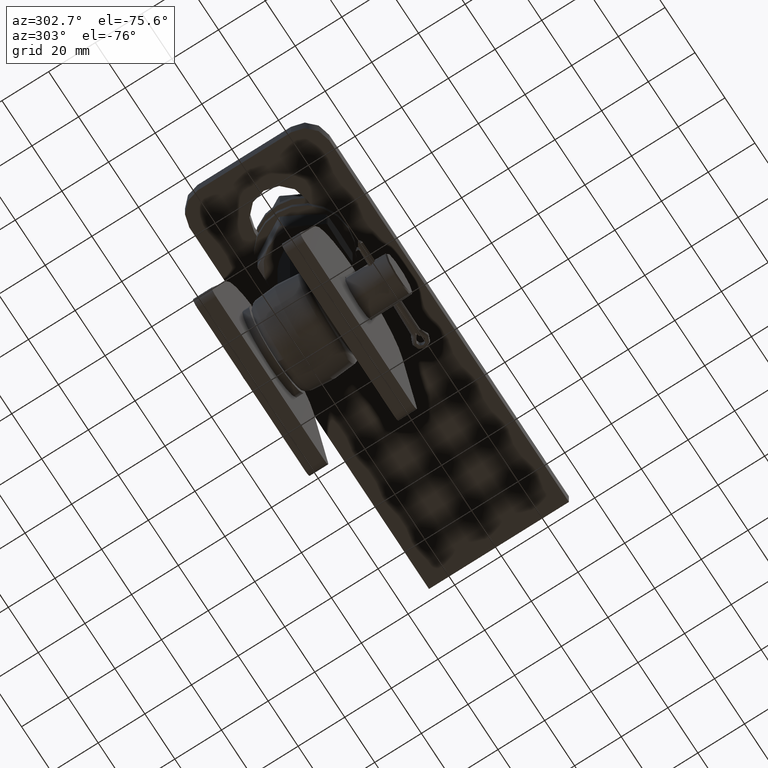
[diagram: clean part render]
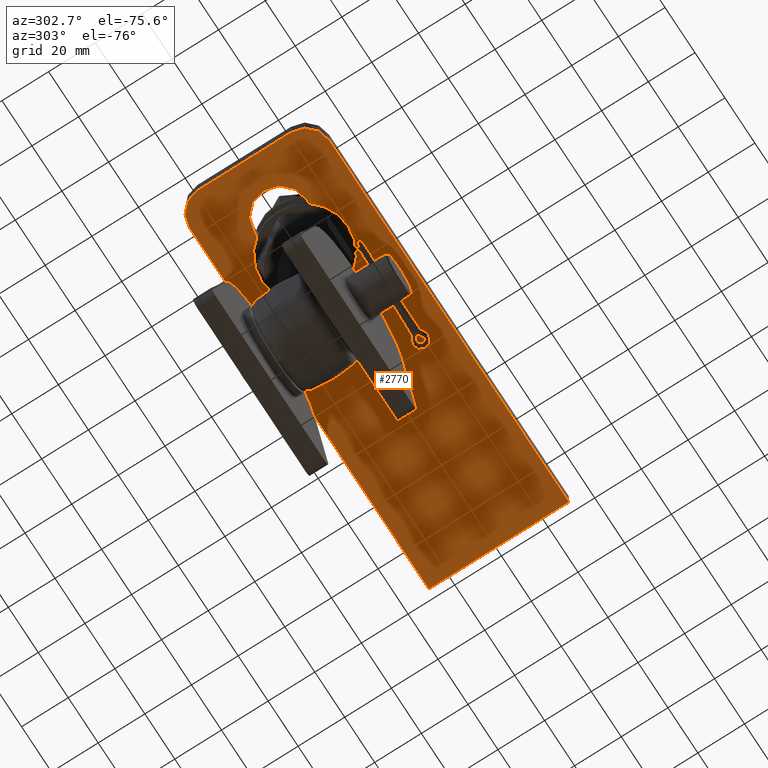
[diagram: same view with one face highlighted and labeled with its STEP entity id]
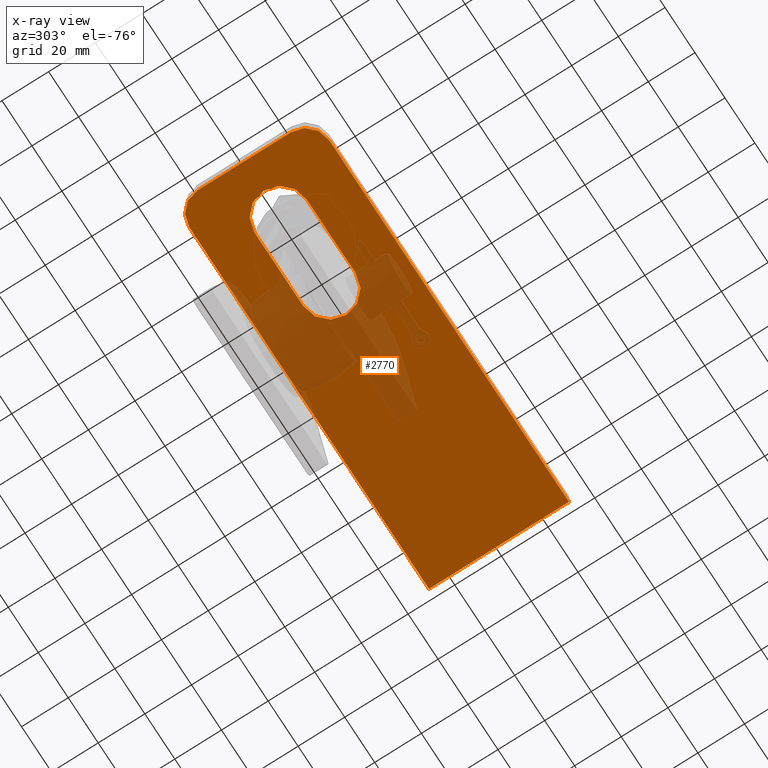
[diagram: x-ray of the same camera — body ghosted, the highlighted face saturated]
A machine part, auxiliary view. The second image highlights one B-rep face of the part: STEP entity #2770.
The next image is the same camera in x-ray: the body ghosted, the highlighted face saturated — about 21% of this face is hidden behind the body in this view.
In plain terms, the highlighted planar face has unit normal (0, 0, 1).
Its self-contained STEP definition (entity closure, byte-faithful):
#94 = CARTESIAN_POINT ( 'NONE',  ( -60.75000000000003553, 0.000000000000000000, -4.000000000000003553 ) ) ;
#195 = VERTEX_POINT ( 'NONE', #11463 ) ;
#407 = DIRECTION ( 'NONE',  ( -1.000000000000000000, -0.000000000000000000, -0.000000000000000000 ) ) ;
#447 = DIRECTION ( 'NONE',  ( 0.000000000000000000, -0.000000000000000000, -1.000000000000000000 ) ) ;
#566 = EDGE_CURVE ( 'NONE', #13257, #10575, #3848, .T. ) ;
#996 = VERTEX_POINT ( 'NONE', #10895 ) ;
#1076 = AXIS2_PLACEMENT_3D ( 'NONE', #2083, #6056, #6169 ) ;
#1078 = ORIENTED_EDGE ( 'NONE', *, *, #7245, .T. ) ;
#1398 = ORIENTED_EDGE ( 'NONE', *, *, #17272, .T. ) ;
#1437 = CIRCLE ( 'NONE', #14490, 9.999999999999994671 ) ;
#1570 = DIRECTION ( 'NONE',  ( -1.000000000000000000, -0.000000000000000000, -0.000000000000000000 ) ) ;
#2030 = CARTESIAN_POINT ( 'NONE',  ( -85.00000000000002842, 30.00000000000000000, -4.000000000000003553 ) ) ;
#2083 = CARTESIAN_POINT ( 'NONE',  ( -75.00000000000004263, 19.99999999999999645, -4.000000000000003553 ) ) ;
#2619 = ORIENTED_EDGE ( 'NONE', *, *, #11900, .F. ) ;
#2770 = ADVANCED_FACE ( 'NONE', ( #3434, #9642 ), #16131, .F. ) ;
#2842 = VECTOR ( 'NONE', #1570, 1000.000000000000000 ) ;
#2872 = CARTESIAN_POINT ( 'NONE',  ( -60.75000000000003553, 11.25000000000000000, -4.000000000000003553 ) ) ;
#3434 = FACE_OUTER_BOUND ( 'NONE', #14131, .T. ) ;
#3512 = DIRECTION ( 'NONE',  ( 0.000000000000000000, 0.000000000000000000, 1.000000000000000000 ) ) ;
#3848 = LINE ( 'NONE', #15407, #14496 ) ;
#4073 = EDGE_CURVE ( 'NONE', #11414, #996, #16066, .T. ) ;
#4362 = AXIS2_PLACEMENT_3D ( 'NONE', #17177, #3512, #16994 ) ;
#4591 = CARTESIAN_POINT ( 'NONE',  ( -85.00000000000002842, 19.99999999999999289, -4.000000000000003553 ) ) ;
#4724 = CARTESIAN_POINT ( 'NONE',  ( 84.99999999999997158, 30.00000000000000000, -4.000000000000003553 ) ) ;
#5320 = ORIENTED_EDGE ( 'NONE', *, *, #6627, .T. ) ;
#5484 = EDGE_CURVE ( 'NONE', #12220, #11414, #10151, .T. ) ;
#5503 = EDGE_CURVE ( 'NONE', #195, #8980, #1437, .T. ) ;
#5644 = ORIENTED_EDGE ( 'NONE', *, *, #5503, .T. ) ;
#5769 = CARTESIAN_POINT ( 'NONE',  ( -60.75000000000003553, 0.000000000000000000, -4.000000000000003553 ) ) ;
#6018 = VECTOR ( 'NONE', #11363, 1000.000000000000000 ) ;
#6050 = CARTESIAN_POINT ( 'NONE',  ( -85.00000000000001421, -20.00000000000000355, -4.000000000000003553 ) ) ;
#6056 = DIRECTION ( 'NONE',  ( 0.000000000000000000, -0.000000000000000000, -1.000000000000000000 ) ) ;
#6169 = DIRECTION ( 'NONE',  ( 1.000000000000000000, 0.000000000000000000, 0.000000000000000000 ) ) ;
#6627 = EDGE_CURVE ( 'NONE', #996, #16986, #12434, .T. ) ;
#6671 = VECTOR ( 'NONE', #17111, 1000.000000000000000 ) ;
#6701 = LINE ( 'NONE', #2030, #8862 ) ;
#7031 = DIRECTION ( 'NONE',  ( 0.000000000000000000, 0.000000000000000000, 1.000000000000000000 ) ) ;
#7245 = EDGE_CURVE ( 'NONE', #8413, #10575, #9492, .T. ) ;
#7297 = AXIS2_PLACEMENT_3D ( 'NONE', #5769, #7031, #13697 ) ;
#7541 = ORIENTED_EDGE ( 'NONE', *, *, #16957, .F. ) ;
#7605 = CARTESIAN_POINT ( 'NONE',  ( -75.00000000000004263, 30.00000000000000000, -4.000000000000003553 ) ) ;
#7636 = EDGE_CURVE ( 'NONE', #195, #8796, #16888, .T. ) ;
#8346 = CARTESIAN_POINT ( 'NONE',  ( 84.99999999999998579, -30.00000000000000000, -4.000000000000003553 ) ) ;
#8413 = VERTEX_POINT ( 'NONE', #4591 ) ;
#8524 = DIRECTION ( 'NONE',  ( 2.312964634635742957E-16, -1.000000000000000000, 0.000000000000000000 ) ) ;
#8796 = VERTEX_POINT ( 'NONE', #8346 ) ;
#8862 = VECTOR ( 'NONE', #8524, 1000.000000000000000 ) ;
#8883 = ORIENTED_EDGE ( 'NONE', *, *, #5484, .T. ) ;
#8980 = VERTEX_POINT ( 'NONE', #6050 ) ;
#9231 = LINE ( 'NONE', #4724, #16021 ) ;
#9492 = CIRCLE ( 'NONE', #1076, 9.999999999999994671 ) ;
#9642 = FACE_BOUND ( 'NONE', #15714, .T. ) ;
#9730 = AXIS2_PLACEMENT_3D ( 'NONE', #94, #16299, #12361 ) ;
#10151 = CIRCLE ( 'NONE', #9730, 11.25000000000000355 ) ;
#10167 = ORIENTED_EDGE ( 'NONE', *, *, #7636, .F. ) ;
#10372 = CIRCLE ( 'NONE', #4362, 11.25000000000000000 ) ;
#10575 = VERTEX_POINT ( 'NONE', #7605 ) ;
#10895 = CARTESIAN_POINT ( 'NONE',  ( -60.75000000000003553, -11.25000000000000000, -4.000000000000003553 ) ) ;
#11047 = AXIS2_PLACEMENT_3D ( 'NONE', #17259, #15903, #11926 ) ;
#11363 = DIRECTION ( 'NONE',  ( 1.000000000000000000, 0.000000000000000000, 0.000000000000000000 ) ) ;
#11414 = VERTEX_POINT ( 'NONE', #15481 ) ;
#11463 = CARTESIAN_POINT ( 'NONE',  ( -75.00000000000002842, -30.00000000000000000, -4.000000000000003553 ) ) ;
#11900 = EDGE_CURVE ( 'NONE', #8796, #13257, #9231, .T. ) ;
#11913 = ORIENTED_EDGE ( 'NONE', *, *, #4073, .T. ) ;
#11926 = DIRECTION ( 'NONE',  ( 1.000000000000000000, 0.000000000000000000, 0.000000000000000000 ) ) ;
#12220 = VERTEX_POINT ( 'NONE', #2872 ) ;
#12361 = DIRECTION ( 'NONE',  ( 1.000000000000000000, 0.000000000000000000, 0.000000000000000000 ) ) ;
#12434 = LINE ( 'NONE', #13075, #6671 ) ;
#12478 = ORIENTED_EDGE ( 'NONE', *, *, #17475, .T. ) ;
#12568 = VERTEX_POINT ( 'NONE', #13998 ) ;
#13075 = CARTESIAN_POINT ( 'NONE',  ( -60.75000000000003553, -11.25000000000000000, -4.000000000000003553 ) ) ;
#13257 = VERTEX_POINT ( 'NONE', #17178 ) ;
#13697 = DIRECTION ( 'NONE',  ( 1.000000000000000000, 0.000000000000000000, 0.000000000000000000 ) ) ;
#13998 = CARTESIAN_POINT ( 'NONE',  ( -28.25000000000003197, 11.25000000000000000, -4.000000000000003553 ) ) ;
#14131 = EDGE_LOOP ( 'NONE', ( #10167, #5644, #7541, #1078, #14993, #2619 ) ) ;
#14141 = LINE ( 'NONE', #15275, #2842 ) ;
#14355 = CARTESIAN_POINT ( 'NONE',  ( -28.25000000000003553, -11.25000000000000000, -4.000000000000003553 ) ) ;
#14490 = AXIS2_PLACEMENT_3D ( 'NONE', #15030, #447, #15386 ) ;
#14496 = VECTOR ( 'NONE', #407, 1000.000000000000000 ) ;
#14993 = ORIENTED_EDGE ( 'NONE', *, *, #566, .F. ) ;
#15030 = CARTESIAN_POINT ( 'NONE',  ( -75.00000000000002842, -19.99999999999999645, -4.000000000000003553 ) ) ;
#15275 = CARTESIAN_POINT ( 'NONE',  ( -60.75000000000003553, 11.25000000000000000, -4.000000000000003553 ) ) ;
#15386 = DIRECTION ( 'NONE',  ( 1.000000000000000000, 0.000000000000000000, 0.000000000000000000 ) ) ;
#15407 = CARTESIAN_POINT ( 'NONE',  ( -85.00000000000002842, 30.00000000000000000, -4.000000000000003553 ) ) ;
#15481 = CARTESIAN_POINT ( 'NONE',  ( -72.00000000000004263, 0.000000000000000000, -4.000000000000003553 ) ) ;
#15497 = DIRECTION ( 'NONE',  ( -2.312964634635742957E-16, 1.000000000000000000, -0.000000000000000000 ) ) ;
#15714 = EDGE_LOOP ( 'NONE', ( #8883, #11913, #5320, #12478, #1398 ) ) ;
#15903 = DIRECTION ( 'NONE',  ( -0.000000000000000000, 0.000000000000000000, 1.000000000000000000 ) ) ;
#16021 = VECTOR ( 'NONE', #15497, 1000.000000000000000 ) ;
#16066 = CIRCLE ( 'NONE', #7297, 11.25000000000000355 ) ;
#16131 = PLANE ( 'NONE',  #11047 ) ;
#16299 = DIRECTION ( 'NONE',  ( 0.000000000000000000, 0.000000000000000000, 1.000000000000000000 ) ) ;
#16872 = CARTESIAN_POINT ( 'NONE',  ( -85.00000000000001421, -30.00000000000000000, -4.000000000000003553 ) ) ;
#16888 = LINE ( 'NONE', #16872, #6018 ) ;
#16957 = EDGE_CURVE ( 'NONE', #8413, #8980, #6701, .T. ) ;
#16986 = VERTEX_POINT ( 'NONE', #14355 ) ;
#16994 = DIRECTION ( 'NONE',  ( 1.000000000000000000, 0.000000000000000000, 0.000000000000000000 ) ) ;
#17111 = DIRECTION ( 'NONE',  ( 1.000000000000000000, 0.000000000000000000, 0.000000000000000000 ) ) ;
#17177 = CARTESIAN_POINT ( 'NONE',  ( -28.25000000000003197, 0.000000000000000000, -4.000000000000003553 ) ) ;
#17178 = CARTESIAN_POINT ( 'NONE',  ( 84.99999999999997158, 30.00000000000000000, -4.000000000000003553 ) ) ;
#17259 = CARTESIAN_POINT ( 'NONE',  ( 0.000000000000000000, 0.000000000000000000, -4.000000000000003553 ) ) ;
#17272 = EDGE_CURVE ( 'NONE', #12568, #12220, #14141, .T. ) ;
#17475 = EDGE_CURVE ( 'NONE', #16986, #12568, #10372, .T. ) ;